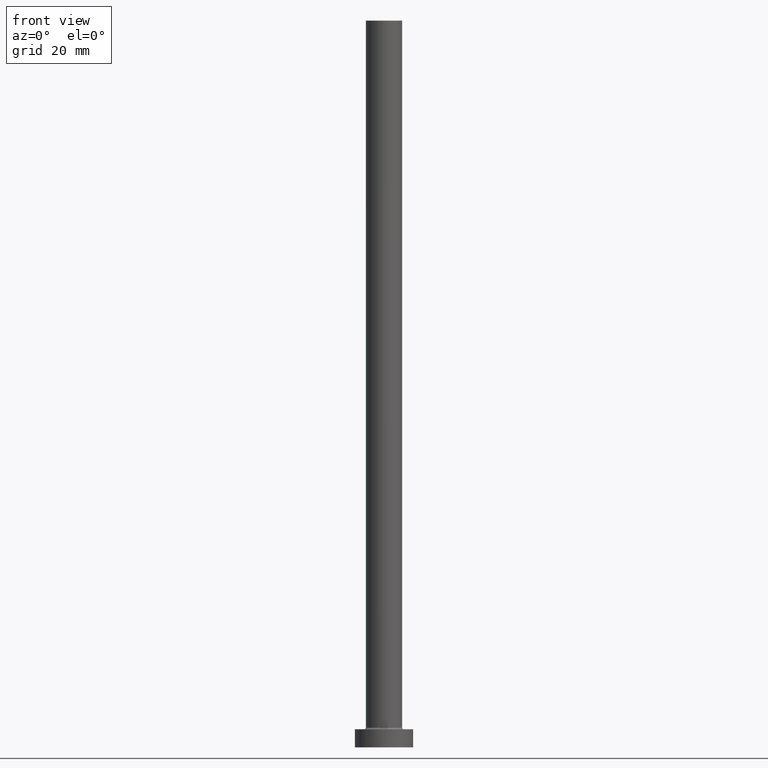
[diagram: clean part render]
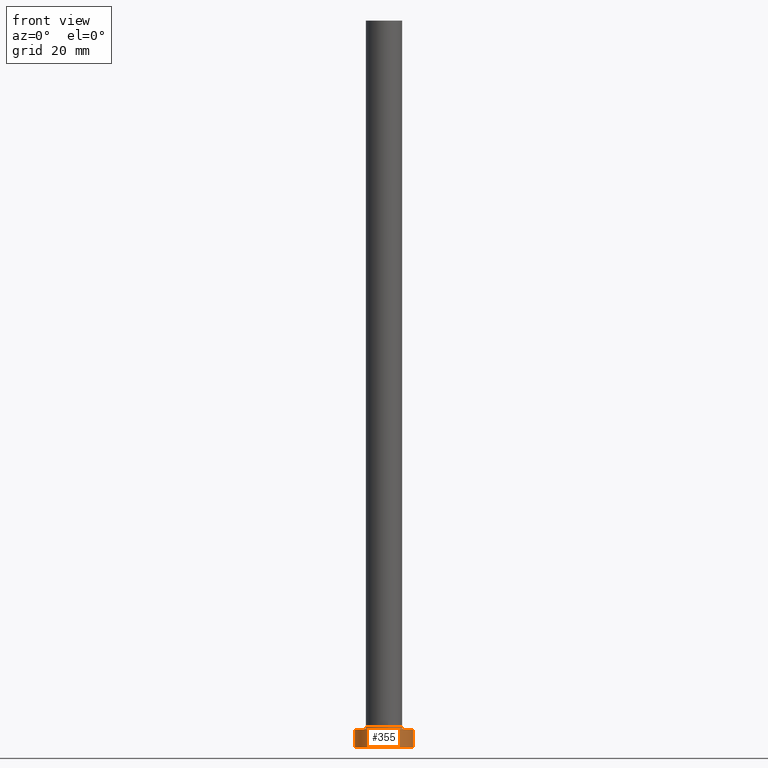
[diagram: same view with one face highlighted and labeled with its STEP entity id]
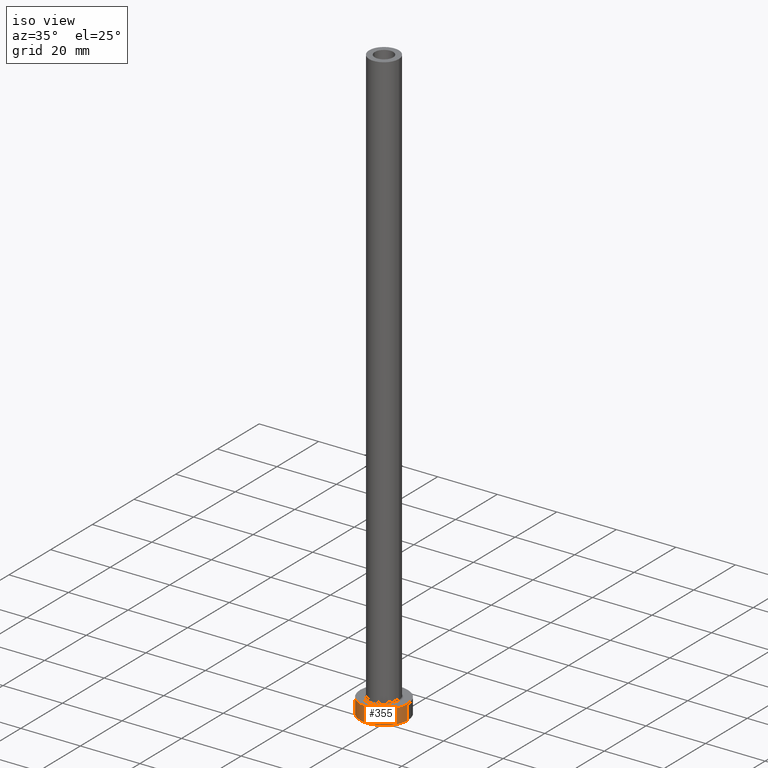
[diagram: same view with one face highlighted and labeled with its STEP entity id]
A machine part, front view. The second image highlights one B-rep face of the part: STEP entity #355.
A second angle (iso view) of the same face is appended — the face is thin or edge-on in the first view.
In plain terms, the highlighted cylindrical surface (edge-blend (fillet) strip) has radius 8 mm, axis along (-0, -0, -1).
Its self-contained STEP definition (entity closure, byte-faithful):
#3 = LINE ( 'NONE', #324, #429 ) ;
#40 = ORIENTED_EDGE ( 'NONE', *, *, #316, .F. ) ;
#99 = FACE_OUTER_BOUND ( 'NONE', #184, .T. ) ;
#101 = DIRECTION ( 'NONE',  ( 0.000000000000000000, 0.000000000000000000, 1.000000000000000000 ) ) ;
#102 = DIRECTION ( 'NONE',  ( -0.000000000000000000, -0.000000000000000000, -1.000000000000000000 ) ) ;
#110 = CARTESIAN_POINT ( 'NONE',  ( 8.000000000000000000, 9.797174393178825657E-16, 0.000000000000000000 ) ) ;
#120 = ORIENTED_EDGE ( 'NONE', *, *, #238, .F. ) ;
#137 = DIRECTION ( 'NONE',  ( 0.000000000000000000, 0.000000000000000000, 1.000000000000000000 ) ) ;
#140 = CARTESIAN_POINT ( 'NONE',  ( 0.000000000000000000, 0.000000000000000000, 5.000000000000000000 ) ) ;
#148 = AXIS2_PLACEMENT_3D ( 'NONE', #140, #137, #461 ) ;
#177 = CARTESIAN_POINT ( 'NONE',  ( 8.000000000000000000, 9.797174393178825657E-16, 5.000000000000000000 ) ) ;
#184 = EDGE_LOOP ( 'NONE', ( #120, #40, #295, #447 ) ) ;
#194 = VERTEX_POINT ( 'NONE', #302 ) ;
#200 = VECTOR ( 'NONE', #285, 1000.000000000000000 ) ;
#238 = EDGE_CURVE ( 'NONE', #298, #405, #3, .T. ) ;
#241 = CIRCLE ( 'NONE', #148, 8.000000000000000000 ) ;
#242 = DIRECTION ( 'NONE',  ( 1.000000000000000000, 0.000000000000000000, 0.000000000000000000 ) ) ;
#244 = EDGE_CURVE ( 'NONE', #194, #292, #428, .T. ) ;
#245 = DIRECTION ( 'NONE',  ( -1.000000000000000000, 0.000000000000000000, 0.000000000000000000 ) ) ;
#251 = CARTESIAN_POINT ( 'NONE',  ( -8.000000000000000000, 0.000000000000000000, 0.000000000000000000 ) ) ;
#278 = CARTESIAN_POINT ( 'NONE',  ( 0.000000000000000000, 0.000000000000000000, 0.000000000000000000 ) ) ;
#281 = EDGE_CURVE ( 'NONE', #292, #405, #326, .T. ) ;
#283 = CYLINDRICAL_SURFACE ( 'NONE', #348, 8.000000000000000000 ) ;
#285 = DIRECTION ( 'NONE',  ( -0.000000000000000000, -0.000000000000000000, -1.000000000000000000 ) ) ;
#292 = VERTEX_POINT ( 'NONE', #251 ) ;
#295 = ORIENTED_EDGE ( 'NONE', *, *, #244, .T. ) ;
#297 = AXIS2_PLACEMENT_3D ( 'NONE', #278, #101, #242 ) ;
#298 = VERTEX_POINT ( 'NONE', #177 ) ;
#302 = CARTESIAN_POINT ( 'NONE',  ( -8.000000000000000000, 0.000000000000000000, 5.000000000000000000 ) ) ;
#315 = DIRECTION ( 'NONE',  ( -0.000000000000000000, -0.000000000000000000, -1.000000000000000000 ) ) ;
#316 = EDGE_CURVE ( 'NONE', #194, #298, #241, .T. ) ;
#324 = CARTESIAN_POINT ( 'NONE',  ( 8.000000000000000000, 9.797174393178825657E-16, 5.000000000000000000 ) ) ;
#326 = CIRCLE ( 'NONE', #297, 8.000000000000000000 ) ;
#348 = AXIS2_PLACEMENT_3D ( 'NONE', #431, #102, #245 ) ;
#355 = ADVANCED_FACE ( 'NONE', ( #99 ), #283, .T. ) ;
#392 = CARTESIAN_POINT ( 'NONE',  ( -8.000000000000000000, 0.000000000000000000, 5.000000000000000000 ) ) ;
#405 = VERTEX_POINT ( 'NONE', #110 ) ;
#428 = LINE ( 'NONE', #392, #200 ) ;
#429 = VECTOR ( 'NONE', #315, 1000.000000000000000 ) ;
#431 = CARTESIAN_POINT ( 'NONE',  ( 0.000000000000000000, 0.000000000000000000, 5.000000000000000000 ) ) ;
#447 = ORIENTED_EDGE ( 'NONE', *, *, #281, .T. ) ;
#461 = DIRECTION ( 'NONE',  ( 1.000000000000000000, 0.000000000000000000, 0.000000000000000000 ) ) ;